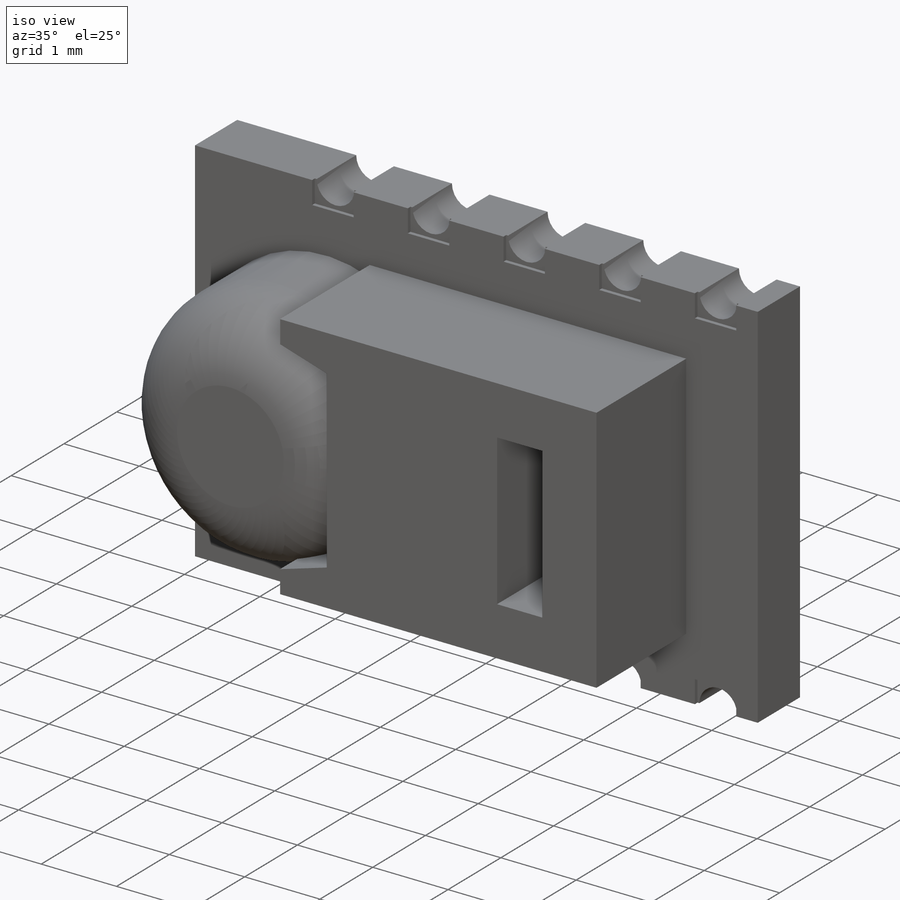
[diagram: iso view]
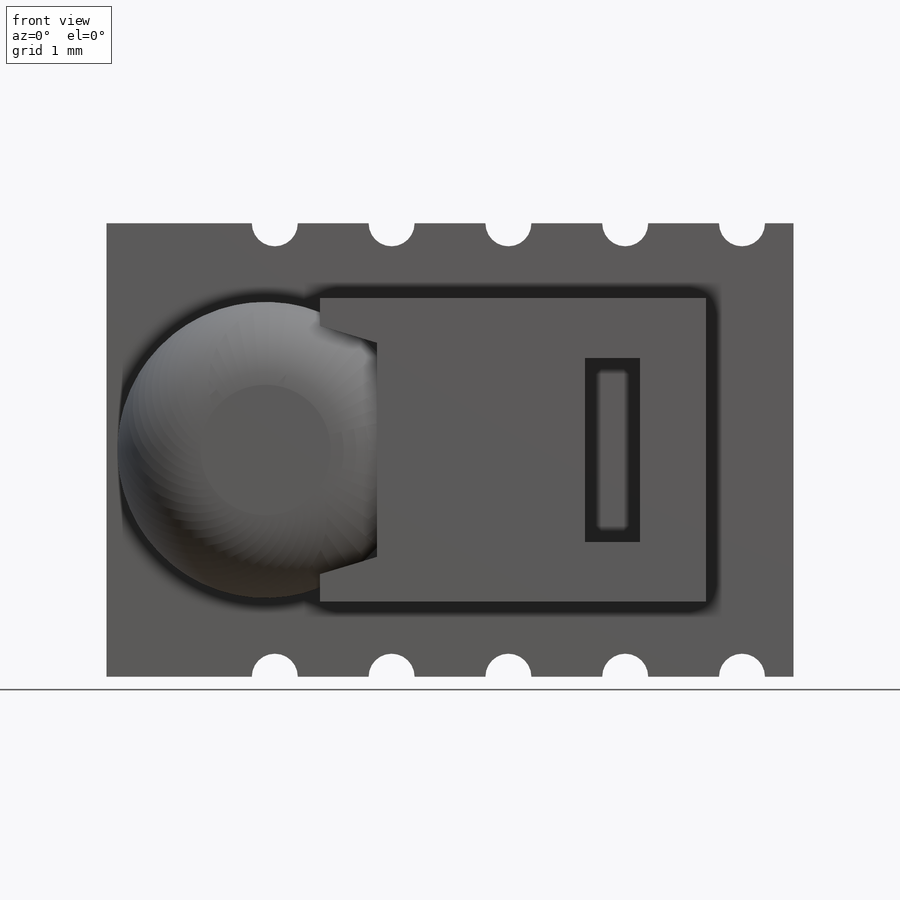
[diagram: front view]
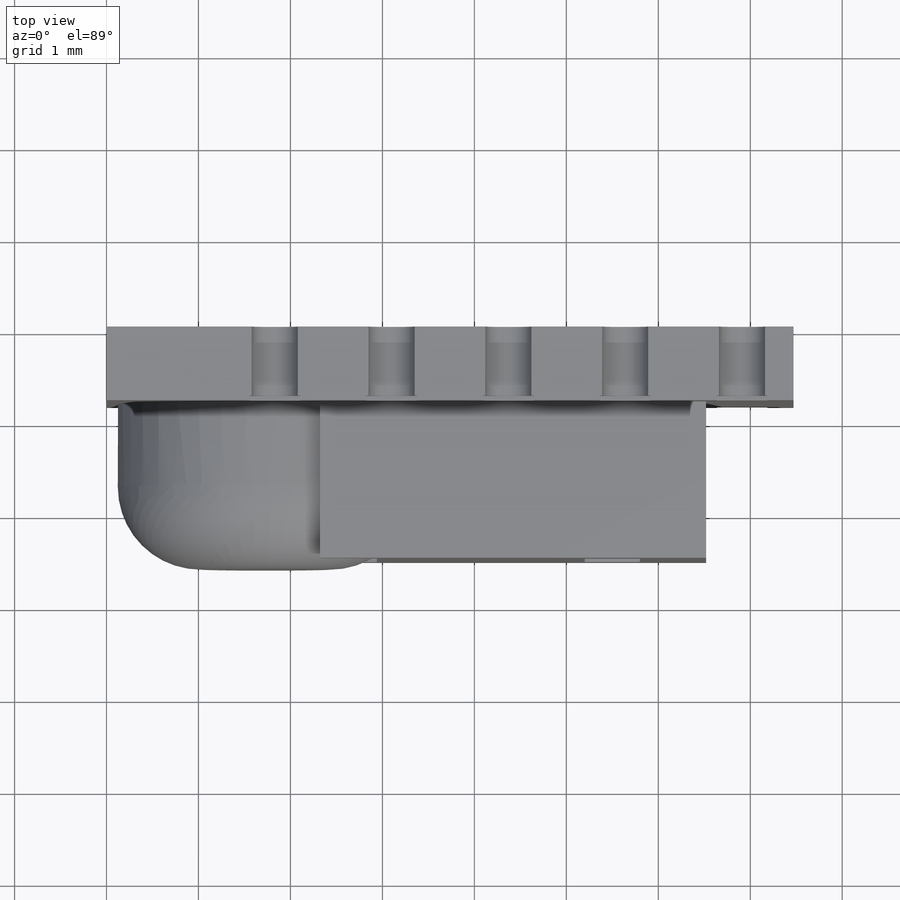
[diagram: top view]
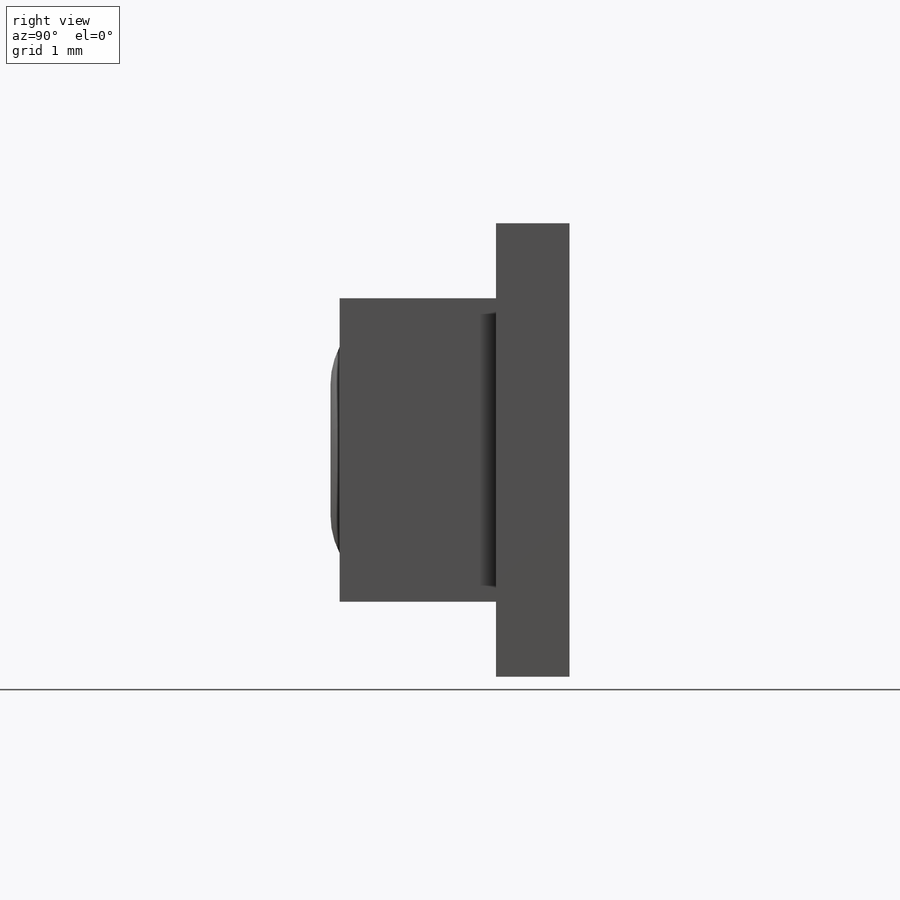
[diagram: right view]
SOLIDWORKS PART (.sldprt)
format: sldprt  version: not decoded by parser v0  size: 321,536 bytes
history: native  units: mm
features: sketch x6, extrude x3, cut_extrude x3, material x1, fillet x1, pattern_linear x1, plane x1, mirror x1 (+13 scaffold rows collapsed)
feature tree (30):
  scaffold x13  (default folders/planes/origin — collapsed)
  material  "Material <not specified>"
  sketch  "Sketch1"  dims[D1=4.93mm D2=7.47mm]
  extrude  "Boss-Extrude1"  Depth=0.8mm
  sketch  "Sketch2"  dims[D1=3.3mm D2=4.2mm D3=0.95mm D4=0.3mm D5=0.3mm]
  extrude  "Boss-Extrude2"  Depth=1.7mm
  sketch  "Sketch3"  dims[D2=~3.219251mm D1=2.2mm]
  extrude  "Boss-Extrude3"  Depth=1.8mm
  fillet  "Fillet1"  Radius=0.9mm
  sketch  "Sketch4"  dims[D1=2.0mm D2=0.6mm D3=5.2mm]
  cut_extrude  "Cut-Extrude1"  Depth=1.8mm
  sketch  "Sketch5"  dims[D2=0.25mm D1=1.83mm]
  cut_extrude  "Cut-Extrude2"  [1 undecoded]
  sketch  "Sketch6"  dims[D1=0.3mm D2=0.55mm]
  cut_extrude  "Cut-Extrude3"  Depth=0.05mm
  pattern_linear  "LPattern1"  Count1=5 Count2=1 Spacing1=1.27mm Spacing2=10mm
  plane  "Plane1"  Offset=2.465mm
  mirror  "Mirror1"
decode coverage: 13 of 15 modeling features carry decoded parameters
note: ~ marks probable driven/reference dimensions
note: 1 parameter value undecoded
note: suppression state not decoded; provenance and decode notes live in map.json
